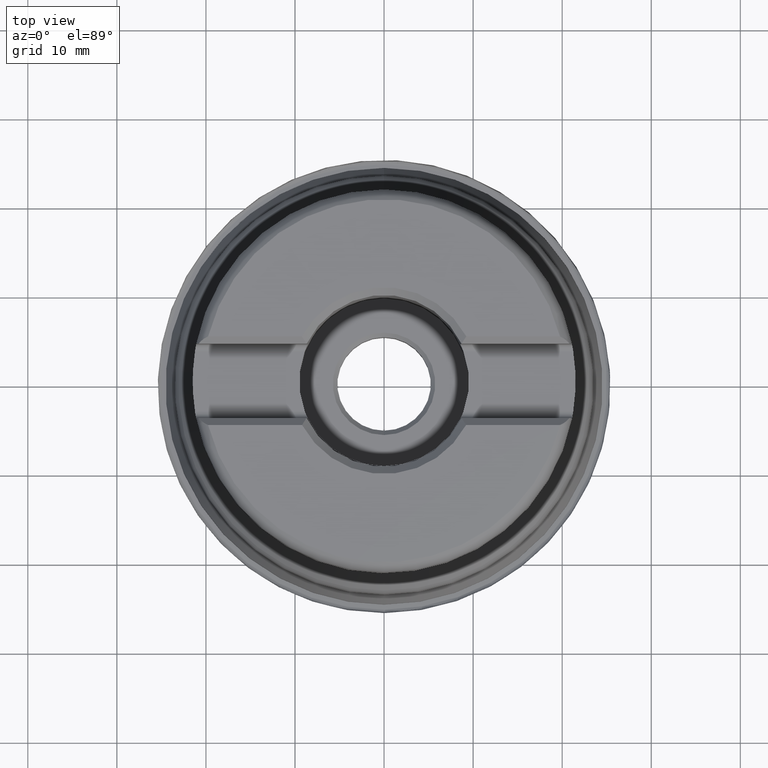
[diagram: clean part render]
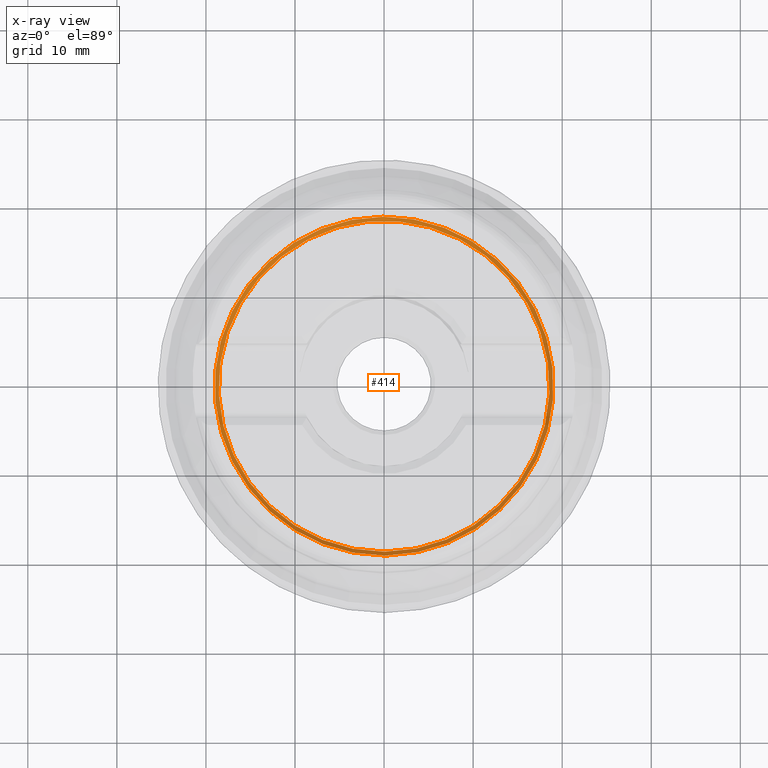
[diagram: x-ray — body ghosted, one internal face saturated and labeled with its STEP entity id]
A machine part, top view, then the same camera in x-ray: the body is ghosted and one INTERNAL B-rep face — a face not visible from any outside direction — is saturated and labeled: STEP entity #414.
In plain terms, the highlighted face is a SurfaceOfRevolution surface.
Its self-contained STEP definition (entity closure, byte-faithful):
#118=SURFACE_OF_REVOLUTION('',#320,#139);
#139=AXIS1_PLACEMENT('',#2356,#1557);
#247=FACE_BOUND('',#569,.T.);
#248=FACE_BOUND('',#570,.T.);
#320=LINE('',#2355,#346);
#346=VECTOR('',#1556,0.93723035470451);
#414=ADVANCED_FACE('',(#247,#248),#118,.F.);
#569=EDGE_LOOP('',(#805));
#570=EDGE_LOOP('',(#806));
#805=ORIENTED_EDGE('',*,*,#1030,.T.);
#806=ORIENTED_EDGE('',*,*,#1031,.F.);
#912=VERTEX_POINT('',#2340);
#913=VERTEX_POINT('',#2354);
#1030=EDGE_CURVE('',#912,#912,#1096,.T.);
#1031=EDGE_CURVE('',#913,#913,#1097,.T.);
#1096=CIRCLE('',#1285,18.5761047240553);
#1097=CIRCLE('',#1286,19.0203153076778);
#1285=AXIS2_PLACEMENT_3D('',#2339,#1551,#1552);
#1286=AXIS2_PLACEMENT_3D('',#2353,#1554,#1555);
#1551=DIRECTION('',(0.,1.17145536458252E-15,1.));
#1552=DIRECTION('',(0.,-1.,1.16730841970492E-15));
#1554=DIRECTION('',(0.,1.17145536458252E-15,1.));
#1555=DIRECTION('',(0.,-1.,1.18564833562961E-15));
#1556=DIRECTION('',(-0.504773085820265,-0.149902148367309,-0.850137328757156));
#1557=DIRECTION('',(0.,1.17145536458252E-15,1.));
#2339=CARTESIAN_POINT('',(0.,3.96232834714975E-15,3.38239805539823));
#2340=CARTESIAN_POINT('',(0.,-18.5761047240553,3.38239805539825));
#2353=CARTESIAN_POINT('',(0.,4.89571412383304E-15,4.17917256760162));
#2354=CARTESIAN_POINT('',(0.,-19.0203153076778,4.17917256760164));
#2355=CARTESIAN_POINT('',(18.7880929764937,-2.9630991731813,4.17917256760162));
#2356=CARTESIAN_POINT('',(0.,0.,0.));